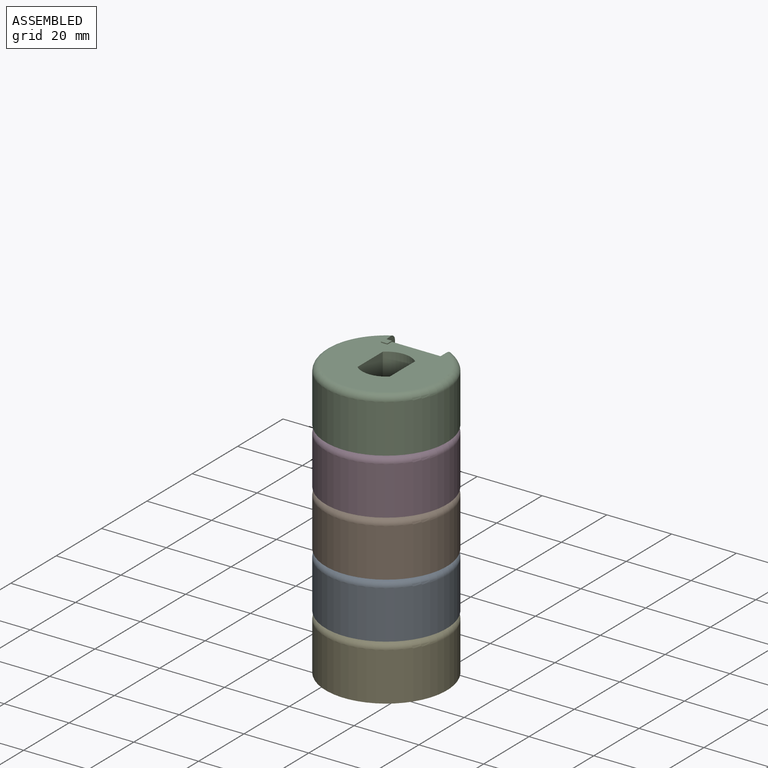
[diagram: assembled view]
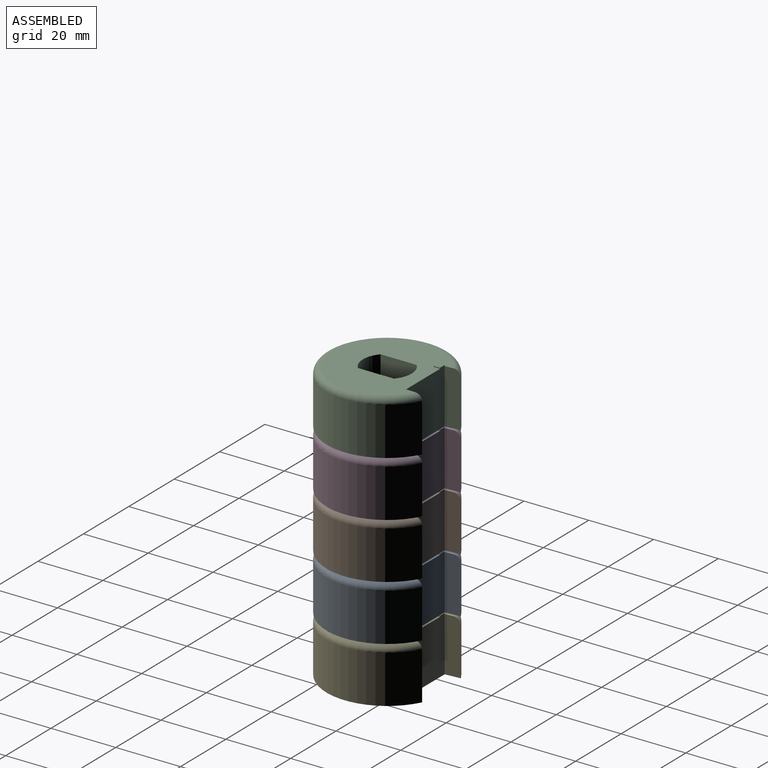
[diagram: assembled view, second angle]
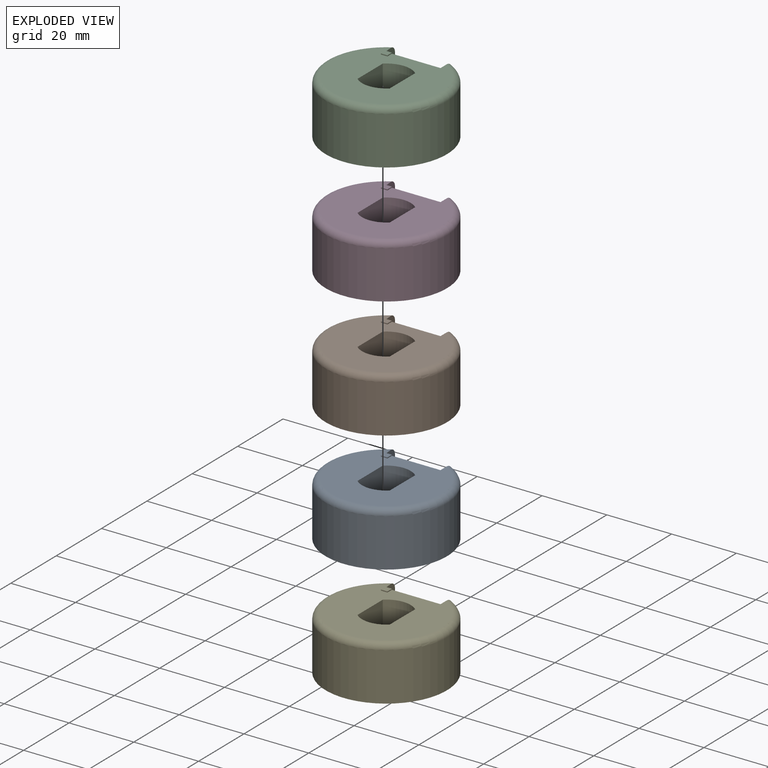
[diagram: exploded view]
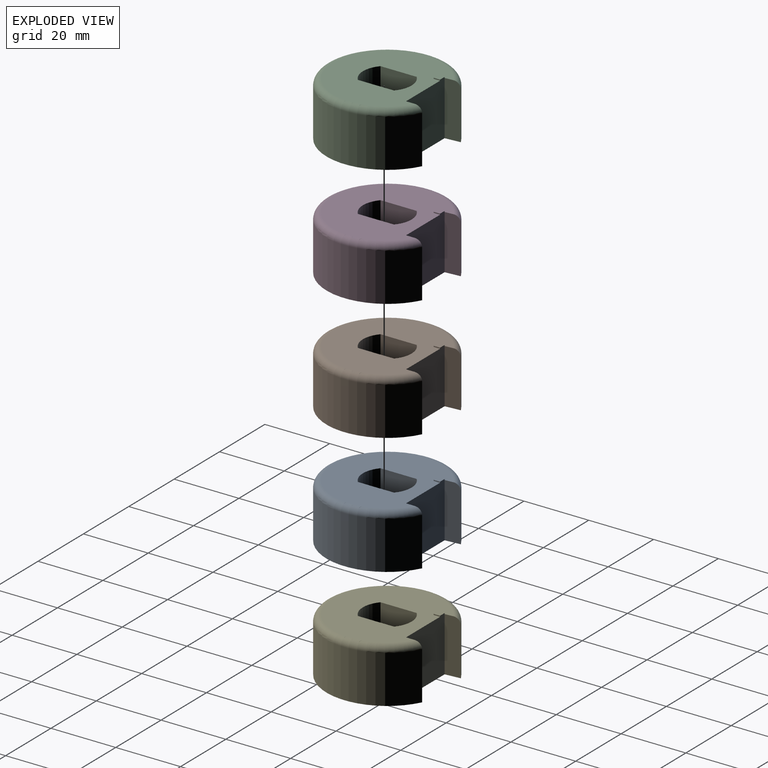
[diagram: exploded view, second angle]
ASSEMBLY  parts=5 mates=4
PART A: 15 faces, bbox 40.6x38.4x17.1 mm
  f0: cylinder r=7.5mm len=16.8mm, axis (0,0,-1), area 183.9mm2, adj f1,f7,f8,f9
  f1: plane 16.8x11.18mm, normal (-1,0,0), area 187.8mm2, adj f0,f2,f8,f9
  f2: cylinder r=7.5mm len=16.8mm, axis (0,0,-1), area 183.9mm2, adj f1,f7,f8,f9
  f3: plane 17.1x17mm, normal (0,1,0), area 286.2mm2, adj f4,f6,f8,f9,f11,f12,f14
  f4: plane 16.8x4.76mm, normal (1,0.08,0), area 79.2mm2, adj f3,f5,f8,f9,f10
  f5: cylinder r=18.75mm len=37.5mm, axis (0,0,-1), area 1475.9mm2, adj f4,f6,f9,f10
  f6: plane 16.8x4.96mm, normal (-1,0,0), area 82.4mm2, adj f3,f5,f8,f9,f10
  f7: plane 16.8x11.18mm, normal (1,0,0), area 187.8mm2, adj f0,f2,f8,f9
  f8: plane 33.5x31.18mm, normal (0,0,1), area 666.9mm2, adj f0,f1,f2,f3,f4,f6,f7,f10
  f9: plane 37.5x35.46mm, normal (0,0,-1), area 857.8mm2, adj f0,f1,f2,f3,f4,f5,f6,f7
  f10: torus R=16.75mm, axis (0,0,1), area 299mm2, adj f4,f5,f6,f8
  f11: plane 2x0.3mm, normal (1,0,0), area 0.6mm2, adj f3,f8,f13,f14
  f12: plane 2x0.3mm, normal (-1,0,0), area 0.6mm2, adj f3,f8,f13,f14
  f13: plane 2x0.3mm, normal (0,-1,0), area 0.6mm2, adj f8,f11,f12,f14
  f14: plane 2x2mm, normal (0,0,1), area 4mm2, adj f3,f11,f12,f13
PART B: same geometry as A
PART C: same geometry as A
PART D: same geometry as A
PART E: same geometry as A
PLACE A t=(16.43,-0.67,-1.23)mm
PLACE B t=(16.43,-0.67,16.07)mm
PLACE C t=(16.43,-0.67,50.67)mm
PLACE D t=(16.43,-0.67,33.37)mm
PLACE E t=(16.43,-0.67,-18.53)mm
MATE parallel C.f9 <-> D.f14  axis (0,0,-1) through (16.44,-2.57,50.67)mm
MATE parallel A.f14 <-> B.f9  axis (0,0,1) through (8.93,10.08,15.87)mm
MATE parallel E.f14 <-> A.f9  axis (0,0,1) through (8.93,10.08,-1.43)mm
MATE parallel D.f9 <-> B.f14  axis (0,0,-1) through (16.44,-2.57,33.37)mm
